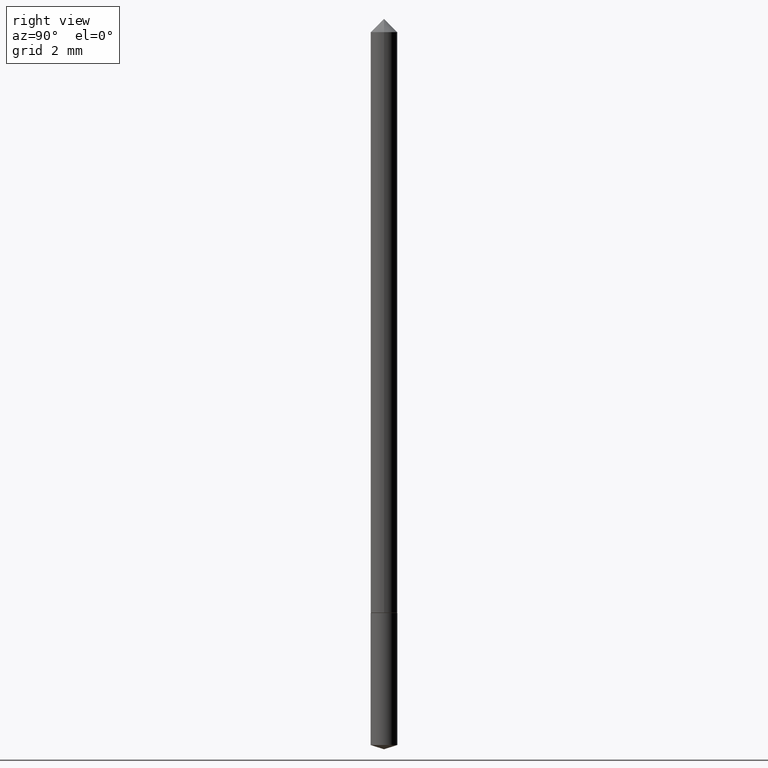
[diagram: clean part render]
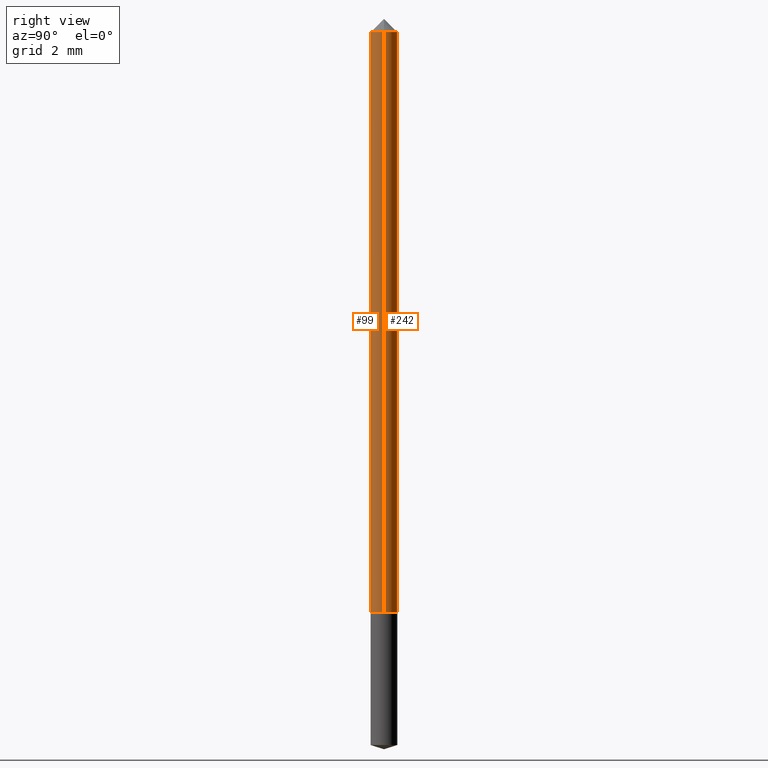
[diagram: same view with one multi-face feature highlighted, each face labeled with its STEP entity id]
A machine part, right view. The highlighted faces form ONE feature: a constant-radius fillet chain: 2 tangent blend faces with common blend radius 0.4496 mm. The faces share edges in the B-rep.
Their STEP definitions:
[1] entity #242 (Cylinder):
#3 = CIRCLE ( 'NONE', #213, 0.01770000000000009760 ) ;
#20 = CARTESIAN_POINT ( 'NONE',  ( 0.01770000000000005250, -1.235984393950472844E-16, 8.630832893158832123E-31 ) ) ;
#27 = CIRCLE ( 'NONE', #41, 0.01770000000000000392 ) ;
#31 = VERTEX_POINT ( 'NONE', #243 ) ;
#39 = CARTESIAN_POINT ( 'NONE',  ( 7.642090019328600035E-31, -1.091087918388489897E-16, -0.03125000000000020123 ) ) ;
#41 = AXIS2_PLACEMENT_3D ( 'NONE', #39, #188, #318 ) ;
#51 = CARTESIAN_POINT ( 'NONE',  ( 0.01770000000000009760, -2.926210510084440245E-15, -0.8026999999999998581 ) ) ;
#53 = DIRECTION ( 'NONE',  ( 1.000000000000000000, -6.982962677686261189E-15, 0.000000000000000000 ) ) ;
#54 = VERTEX_POINT ( 'NONE', #208 ) ;
#70 = DIRECTION ( 'NONE',  ( -2.445468806185136877E-29, 3.491481338843145188E-15, 1.000000000000000000 ) ) ;
#80 = EDGE_CURVE ( 'NONE', #194, #54, #27, .T. ) ;
#87 = CARTESIAN_POINT ( 'NONE',  ( 0.000000000000000000, 0.000000000000000000, 0.000000000000000000 ) ) ;
#95 = EDGE_CURVE ( 'NONE', #31, #54, #107, .T. ) ;
#107 = LINE ( 'NONE', #263, #172 ) ;
#111 = CARTESIAN_POINT ( 'NONE',  ( 1.962977810724808948E-29, -2.802612070689392664E-15, -0.8026999999999998581 ) ) ;
#114 = ORIENTED_EDGE ( 'NONE', *, *, #144, .T. ) ;
#128 = VECTOR ( 'NONE', #136, 39.37007874015748143 ) ;
#136 = DIRECTION ( 'NONE',  ( -2.445468806185136877E-29, 3.491481338843145188E-15, 1.000000000000000000 ) ) ;
#144 = EDGE_CURVE ( 'NONE', #196, #31, #3, .T. ) ;
#164 = ORIENTED_EDGE ( 'NONE', *, *, #95, .T. ) ;
#172 = VECTOR ( 'NONE', #70, 39.37007874015748143 ) ;
#188 = DIRECTION ( 'NONE',  ( -2.445468806185136597E-29, 3.491481338843145583E-15, 1.000000000000000000 ) ) ;
#190 = LINE ( 'NONE', #20, #128 ) ;
#193 = DIRECTION ( 'NONE',  ( -2.445468806185136597E-29, 3.491481338843145583E-15, 1.000000000000000000 ) ) ;
#194 = VERTEX_POINT ( 'NONE', #328 ) ;
#196 = VERTEX_POINT ( 'NONE', #51 ) ;
#208 = CARTESIAN_POINT ( 'NONE',  ( -0.01770000000000000392, -1.330094367034580829E-15, -0.03125000000000020123 ) ) ;
#213 = AXIS2_PLACEMENT_3D ( 'NONE', #111, #247, #53 ) ;
#227 = EDGE_CURVE ( 'NONE', #196, #194, #190, .T. ) ;
#242 = ADVANCED_FACE ( 'NONE', ( #351 ), #278, .T. ) ;
#243 = CARTESIAN_POINT ( 'NONE',  ( -0.01770000000000009760, -2.676846006459854189E-15, -0.8026999999999998581 ) ) ;
#247 = DIRECTION ( 'NONE',  ( -2.445468806185136597E-29, 3.491481338843145583E-15, 1.000000000000000000 ) ) ;
#263 = CARTESIAN_POINT ( 'NONE',  ( -0.01770000000000005250, 1.257660642295381059E-16, -8.706515109751208922E-31 ) ) ;
#278 = CYLINDRICAL_SURFACE ( 'NONE', #337, 0.01770000000000005250 ) ;
#281 = ORIENTED_EDGE ( 'NONE', *, *, #227, .F. ) ;
#286 = ORIENTED_EDGE ( 'NONE', *, *, #80, .F. ) ;
#302 = DIRECTION ( 'NONE',  ( 1.000000000000000000, -6.982962677686266711E-15, 4.876176775795935793E-29 ) ) ;
#318 = DIRECTION ( 'NONE',  ( 1.000000000000000000, -6.982962677686265922E-15, 0.000000000000000000 ) ) ;
#328 = CARTESIAN_POINT ( 'NONE',  ( 0.01770000000000000392, -2.327072312338959414E-16, -0.03125000000000020123 ) ) ;
#337 = AXIS2_PLACEMENT_3D ( 'NONE', #87, #193, #302 ) ;
#351 = FACE_OUTER_BOUND ( 'NONE', #364, .T. ) ;
#364 = EDGE_LOOP ( 'NONE', ( #114, #164, #286, #281 ) ) ;
[2] entity #99 (Cylinder):
#20 = CARTESIAN_POINT ( 'NONE',  ( 0.01770000000000005250, -1.235984393950472844E-16, 8.630832893158832123E-31 ) ) ;
#28 = ORIENTED_EDGE ( 'NONE', *, *, #227, .T. ) ;
#31 = VERTEX_POINT ( 'NONE', #243 ) ;
#33 = AXIS2_PLACEMENT_3D ( 'NONE', #97, #291, #266 ) ;
#45 = DIRECTION ( 'NONE',  ( 1.000000000000000000, -6.982962677686265922E-15, 0.000000000000000000 ) ) ;
#51 = CARTESIAN_POINT ( 'NONE',  ( 0.01770000000000009760, -2.926210510084440245E-15, -0.8026999999999998581 ) ) ;
#54 = VERTEX_POINT ( 'NONE', #208 ) ;
#58 = AXIS2_PLACEMENT_3D ( 'NONE', #158, #135, #45 ) ;
#70 = DIRECTION ( 'NONE',  ( -2.445468806185136877E-29, 3.491481338843145188E-15, 1.000000000000000000 ) ) ;
#74 = CYLINDRICAL_SURFACE ( 'NONE', #290, 0.01770000000000005250 ) ;
#78 = CIRCLE ( 'NONE', #33, 0.01770000000000009760 ) ;
#94 = EDGE_LOOP ( 'NONE', ( #297, #230, #28, #331 ) ) ;
#95 = EDGE_CURVE ( 'NONE', #31, #54, #107, .T. ) ;
#97 = CARTESIAN_POINT ( 'NONE',  ( 1.962977810724808948E-29, -2.802612070689392664E-15, -0.8026999999999998581 ) ) ;
#99 = ADVANCED_FACE ( 'NONE', ( #150 ), #74, .T. ) ;
#105 = EDGE_CURVE ( 'NONE', #31, #196, #78, .T. ) ;
#107 = LINE ( 'NONE', #263, #172 ) ;
#125 = DIRECTION ( 'NONE',  ( 1.000000000000000000, -6.982962677686266711E-15, 4.876176775795935793E-29 ) ) ;
#128 = VECTOR ( 'NONE', #136, 39.37007874015748143 ) ;
#135 = DIRECTION ( 'NONE',  ( -2.445468806185136597E-29, 3.491481338843145583E-15, 1.000000000000000000 ) ) ;
#136 = DIRECTION ( 'NONE',  ( -2.445468806185136877E-29, 3.491481338843145188E-15, 1.000000000000000000 ) ) ;
#150 = FACE_OUTER_BOUND ( 'NONE', #94, .T. ) ;
#157 = CARTESIAN_POINT ( 'NONE',  ( 0.000000000000000000, 0.000000000000000000, 0.000000000000000000 ) ) ;
#158 = CARTESIAN_POINT ( 'NONE',  ( 7.642090019328600035E-31, -1.091087918388489897E-16, -0.03125000000000020123 ) ) ;
#172 = VECTOR ( 'NONE', #70, 39.37007874015748143 ) ;
#173 = CIRCLE ( 'NONE', #58, 0.01770000000000000392 ) ;
#179 = DIRECTION ( 'NONE',  ( -2.445468806185136597E-29, 3.491481338843145583E-15, 1.000000000000000000 ) ) ;
#190 = LINE ( 'NONE', #20, #128 ) ;
#194 = VERTEX_POINT ( 'NONE', #328 ) ;
#196 = VERTEX_POINT ( 'NONE', #51 ) ;
#208 = CARTESIAN_POINT ( 'NONE',  ( -0.01770000000000000392, -1.330094367034580829E-15, -0.03125000000000020123 ) ) ;
#227 = EDGE_CURVE ( 'NONE', #196, #194, #190, .T. ) ;
#230 = ORIENTED_EDGE ( 'NONE', *, *, #105, .T. ) ;
#243 = CARTESIAN_POINT ( 'NONE',  ( -0.01770000000000009760, -2.676846006459854189E-15, -0.8026999999999998581 ) ) ;
#263 = CARTESIAN_POINT ( 'NONE',  ( -0.01770000000000005250, 1.257660642295381059E-16, -8.706515109751208922E-31 ) ) ;
#266 = DIRECTION ( 'NONE',  ( 1.000000000000000000, -6.982962677686261189E-15, 0.000000000000000000 ) ) ;
#284 = EDGE_CURVE ( 'NONE', #54, #194, #173, .T. ) ;
#290 = AXIS2_PLACEMENT_3D ( 'NONE', #157, #179, #125 ) ;
#291 = DIRECTION ( 'NONE',  ( -2.445468806185136597E-29, 3.491481338843145583E-15, 1.000000000000000000 ) ) ;
#297 = ORIENTED_EDGE ( 'NONE', *, *, #95, .F. ) ;
#328 = CARTESIAN_POINT ( 'NONE',  ( 0.01770000000000000392, -2.327072312338959414E-16, -0.03125000000000020123 ) ) ;
#331 = ORIENTED_EDGE ( 'NONE', *, *, #284, .F. ) ;